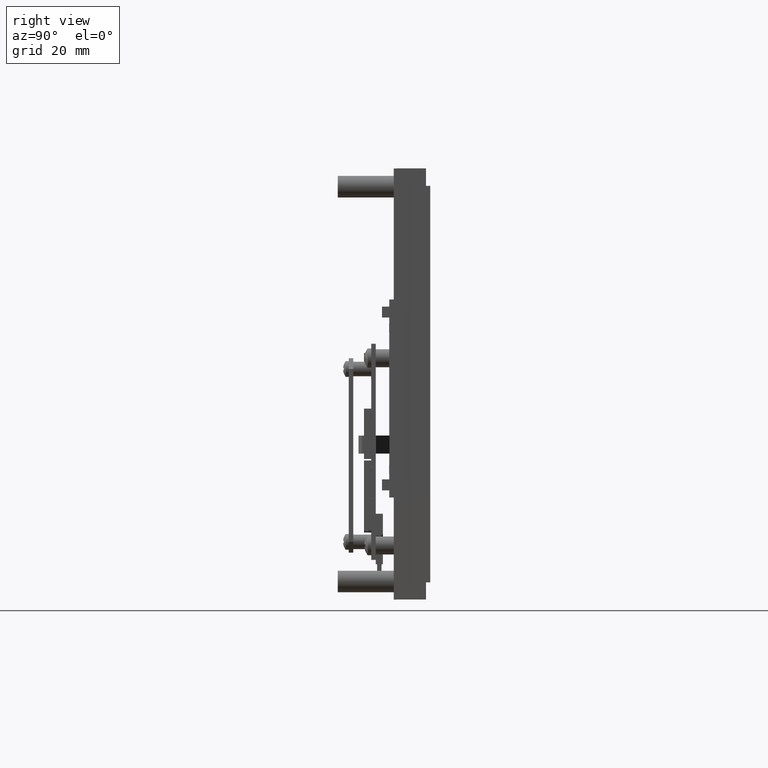
[diagram: clean part render]
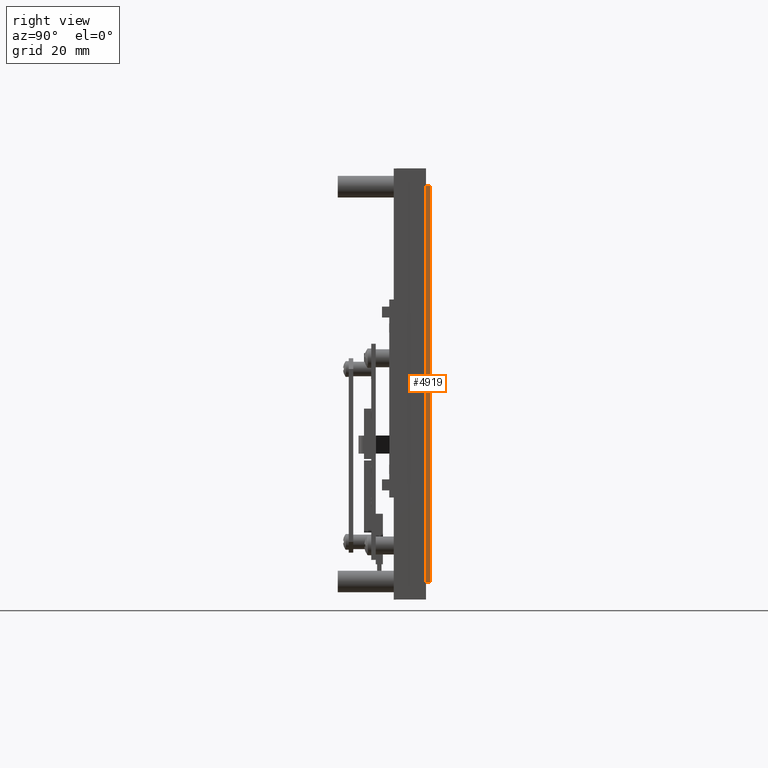
[diagram: same view with one face highlighted and labeled with its STEP entity id]
A machine part, right view. The second image highlights one B-rep face of the part: STEP entity #4919.
In plain terms, the highlighted planar face has unit normal (-1, 0, 0).
Its self-contained STEP definition (entity closure, byte-faithful):
#2536 = VECTOR ( 'NONE', #4020, 39.37007874015748100 ) ;
#2542 = LINE ( 'NONE', #4018, #2536 ) ;
#2546 = LINE ( 'NONE', #4019, #2553 ) ;
#2553 = VECTOR ( 'NONE', #4026, 39.37007874015748100 ) ;
#2580 = LINE ( 'NONE', #4054, #2583 ) ;
#2583 = VECTOR ( 'NONE', #4055, 39.37007874015748100 ) ;
#4018 = CARTESIAN_POINT ( 'NONE',  ( 3.592500000000000700, 0.05799999999999996800, 2.752499999999999100 ) ) ;
#4019 = CARTESIAN_POINT ( 'NONE',  ( 3.592500000000000700, 0.0000000000000000000, 2.752499999999999100 ) ) ;
#4020 = DIRECTION ( 'NONE',  ( -0.0000000000000000000, -1.000000000000000000, -0.0000000000000000000 ) ) ;
#4026 = DIRECTION ( 'NONE',  ( 0.0000000000000000000, 0.0000000000000000000, -1.000000000000000000 ) ) ;
#4054 = CARTESIAN_POINT ( 'NONE',  ( 3.592500000000000700, 0.05799999999999996800, 2.752499999999999100 ) ) ;
#4055 = DIRECTION ( 'NONE',  ( 0.0000000000000000000, 0.0000000000000000000, -1.000000000000000000 ) ) ;
#4905 = EDGE_CURVE ( 'NONE', #5734, #5461, #7971, .T. ) ;
#4919 = ADVANCED_FACE ( 'NONE', ( #7992 ), #14809, .F. ) ;
#5461 = VERTEX_POINT ( 'NONE', #20290 ) ;
#5482 = VERTEX_POINT ( 'NONE', #20294 ) ;
#5489 = VERTEX_POINT ( 'NONE', #20299 ) ;
#5734 = VERTEX_POINT ( 'NONE', #20338 ) ;
#7098 = ORIENTED_EDGE ( 'NONE', *, *, #13677, .F. ) ;
#7216 = ORIENTED_EDGE ( 'NONE', *, *, #13658, .T. ) ;
#7234 = ORIENTED_EDGE ( 'NONE', *, *, #4905, .F. ) ;
#7236 = ORIENTED_EDGE ( 'NONE', *, *, #13662, .T. ) ;
#7971 = LINE ( 'NONE', #14752, #7975 ) ;
#7975 = VECTOR ( 'NONE', #14760, 39.37007874015748100 ) ;
#7992 = FACE_OUTER_BOUND ( 'NONE', #13296, .T. ) ;
#8210 = AXIS2_PLACEMENT_3D ( 'NONE', #14802, #14811, #14812 ) ;
#13296 = EDGE_LOOP ( 'NONE', ( #7236, #7234, #7098, #7216 ) ) ;
#13658 = EDGE_CURVE ( 'NONE', #5482, #5489, #2542, .T. ) ;
#13662 = EDGE_CURVE ( 'NONE', #5489, #5461, #2546, .T. ) ;
#13677 = EDGE_CURVE ( 'NONE', #5482, #5734, #2580, .T. ) ;
#14752 = CARTESIAN_POINT ( 'NONE',  ( 3.592500000000000700, 0.05799999999999996800, -2.752500000000000800 ) ) ;
#14760 = DIRECTION ( 'NONE',  ( -0.0000000000000000000, -1.000000000000000000, -0.0000000000000000000 ) ) ;
#14802 = CARTESIAN_POINT ( 'NONE',  ( 3.592500000000000700, 0.05799999999999996800, 2.752499999999999100 ) ) ;
#14809 = PLANE ( 'NONE',  #8210 ) ;
#14811 = DIRECTION ( 'NONE',  ( -1.000000000000000000, 0.0000000000000000000, 0.0000000000000000000 ) ) ;
#14812 = DIRECTION ( 'NONE',  ( 0.0000000000000000000, 0.0000000000000000000, 1.000000000000000000 ) ) ;
#20290 = CARTESIAN_POINT ( 'NONE',  ( 3.592500000000000700, 0.0000000000000000000, -2.752500000000000800 ) ) ;
#20294 = CARTESIAN_POINT ( 'NONE',  ( 3.592500000000000700, 0.05799999999999996800, 2.752499999999999100 ) ) ;
#20299 = CARTESIAN_POINT ( 'NONE',  ( 3.592500000000000700, 0.0000000000000000000, 2.752499999999999100 ) ) ;
#20338 = CARTESIAN_POINT ( 'NONE',  ( 3.592500000000000700, 0.05799999999999996800, -2.752500000000000800 ) ) ;